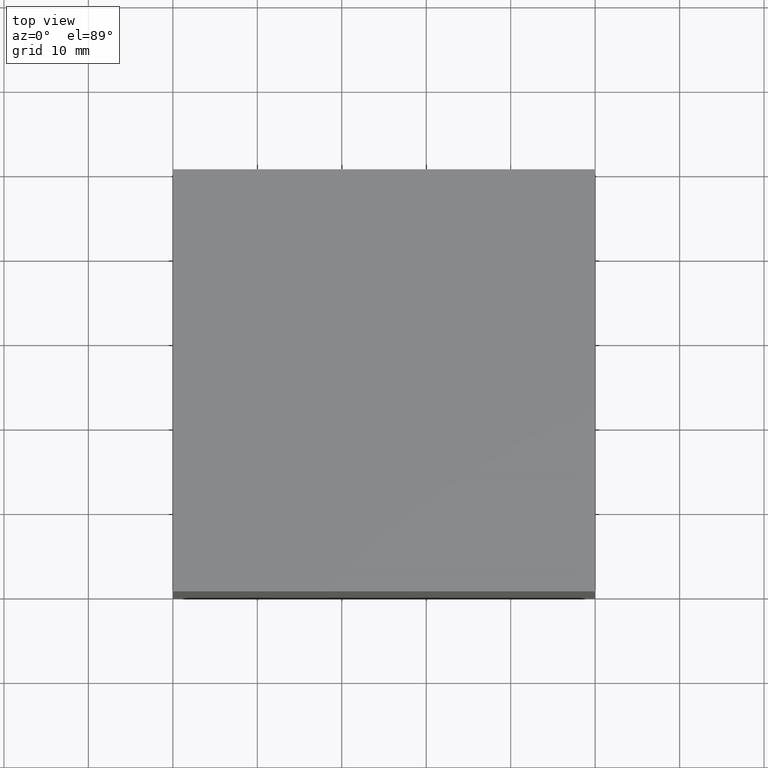
[diagram: clean part render]
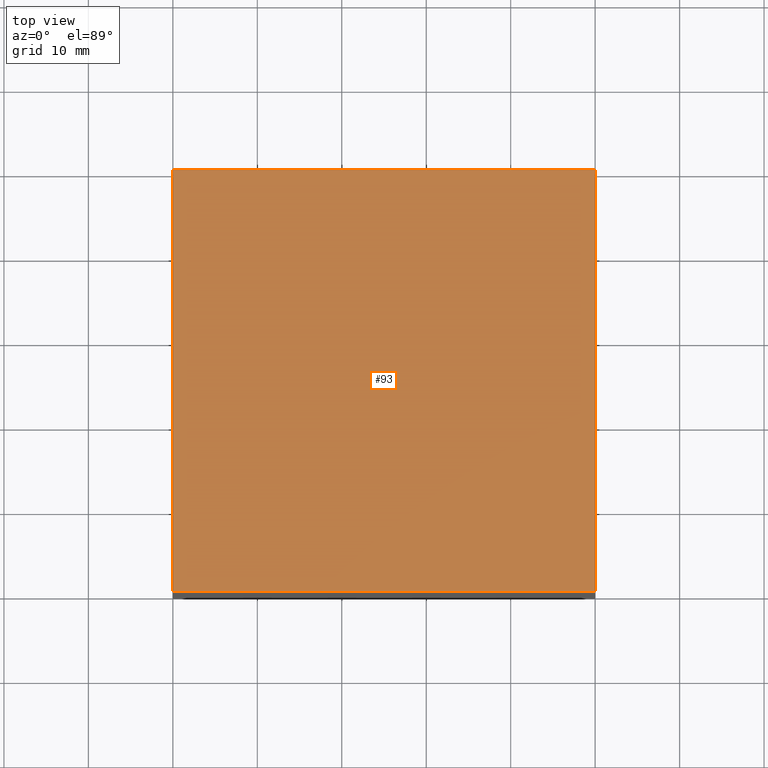
[diagram: same view with one face highlighted and labeled with its STEP entity id]
A machine part, top view. The second image highlights one B-rep face of the part: STEP entity #93.
In plain terms, the highlighted planar face has unit normal (-0, 0, 1).
Its self-contained STEP definition (entity closure, byte-faithful):
#12 = VECTOR ( 'NONE', #171, 1000.000000000000000 ) ;
#20 = CARTESIAN_POINT ( 'NONE',  ( -50.00000000000000000, 50.00000000000000000, 0.0000000000000000000 ) ) ;
#34 = CARTESIAN_POINT ( 'NONE',  ( -50.00000000000000000, 0.0000000000000000000, 0.0000000000000000000 ) ) ;
#39 = LINE ( 'NONE', #166, #180 ) ;
#56 = VECTOR ( 'NONE', #83, 1000.000000000000000 ) ;
#66 = VERTEX_POINT ( 'NONE', #34 ) ;
#78 = AXIS2_PLACEMENT_3D ( 'NONE', #20, #291, #268 ) ;
#83 = DIRECTION ( 'NONE',  ( 0.0000000000000000000, -1.000000000000000000, 0.0000000000000000000 ) ) ;
#93 = ADVANCED_FACE ( 'NONE', ( #293 ), #146, .T. ) ;
#97 = EDGE_CURVE ( 'NONE', #192, #66, #136, .T. ) ;
#102 = LINE ( 'NONE', #106, #295 ) ;
#106 = CARTESIAN_POINT ( 'NONE',  ( -50.00000000000000000, 50.00000000000000000, 0.0000000000000000000 ) ) ;
#112 = EDGE_CURVE ( 'NONE', #172, #243, #39, .T. ) ;
#113 = CARTESIAN_POINT ( 'NONE',  ( 0.0000000000000000000, 0.0000000000000000000, 0.0000000000000000000 ) ) ;
#133 = EDGE_CURVE ( 'NONE', #243, #66, #102, .T. ) ;
#135 = ORIENTED_EDGE ( 'NONE', *, *, #170, .F. ) ;
#136 = LINE ( 'NONE', #249, #12 ) ;
#140 = DIRECTION ( 'NONE',  ( -1.000000000000000000, -0.0000000000000000000, -0.0000000000000000000 ) ) ;
#146 = PLANE ( 'NONE',  #78 ) ;
#160 = CARTESIAN_POINT ( 'NONE',  ( 0.0000000000000000000, 50.00000000000000000, 0.0000000000000000000 ) ) ;
#166 = CARTESIAN_POINT ( 'NONE',  ( -50.00000000000000000, 50.00000000000000000, 0.0000000000000000000 ) ) ;
#170 = EDGE_CURVE ( 'NONE', #172, #192, #271, .T. ) ;
#171 = DIRECTION ( 'NONE',  ( -1.000000000000000000, -0.0000000000000000000, -0.0000000000000000000 ) ) ;
#172 = VERTEX_POINT ( 'NONE', #250 ) ;
#180 = VECTOR ( 'NONE', #140, 1000.000000000000000 ) ;
#187 = ORIENTED_EDGE ( 'NONE', *, *, #97, .F. ) ;
#192 = VERTEX_POINT ( 'NONE', #113 ) ;
#208 = ORIENTED_EDGE ( 'NONE', *, *, #112, .T. ) ;
#234 = DIRECTION ( 'NONE',  ( 0.0000000000000000000, -1.000000000000000000, 0.0000000000000000000 ) ) ;
#243 = VERTEX_POINT ( 'NONE', #286 ) ;
#249 = CARTESIAN_POINT ( 'NONE',  ( -50.00000000000000000, 0.0000000000000000000, 0.0000000000000000000 ) ) ;
#250 = CARTESIAN_POINT ( 'NONE',  ( 0.0000000000000000000, 50.00000000000000000, 0.0000000000000000000 ) ) ;
#268 = DIRECTION ( 'NONE',  ( 1.000000000000000000, 0.0000000000000000000, 0.0000000000000000000 ) ) ;
#271 = LINE ( 'NONE', #160, #56 ) ;
#275 = EDGE_LOOP ( 'NONE', ( #187, #135, #208, #292 ) ) ;
#286 = CARTESIAN_POINT ( 'NONE',  ( -50.00000000000000000, 50.00000000000000000, 0.0000000000000000000 ) ) ;
#291 = DIRECTION ( 'NONE',  ( -0.0000000000000000000, 0.0000000000000000000, 1.000000000000000000 ) ) ;
#292 = ORIENTED_EDGE ( 'NONE', *, *, #133, .T. ) ;
#293 = FACE_OUTER_BOUND ( 'NONE', #275, .T. ) ;
#295 = VECTOR ( 'NONE', #234, 1000.000000000000000 ) ;